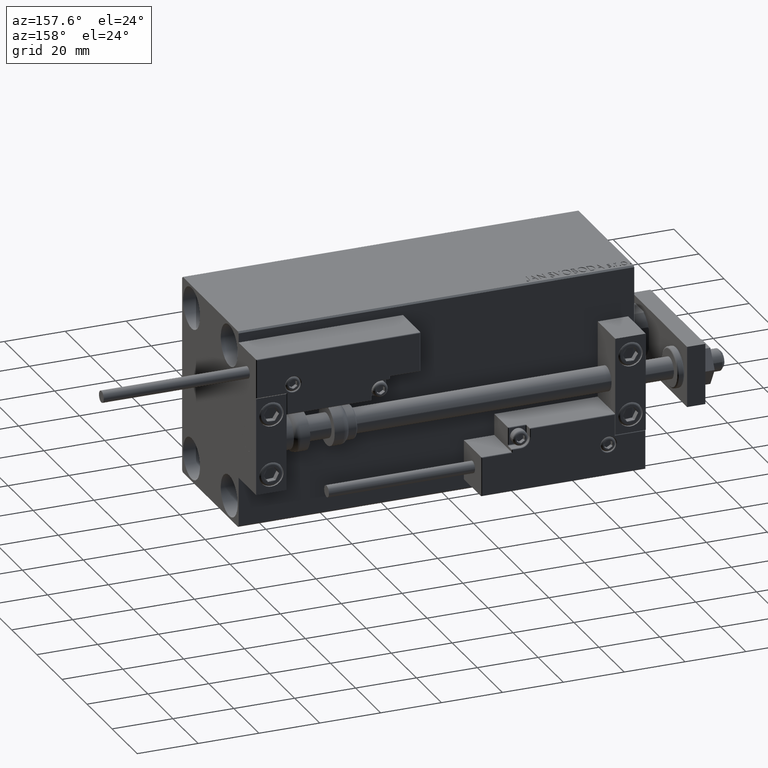
[diagram: clean part render]
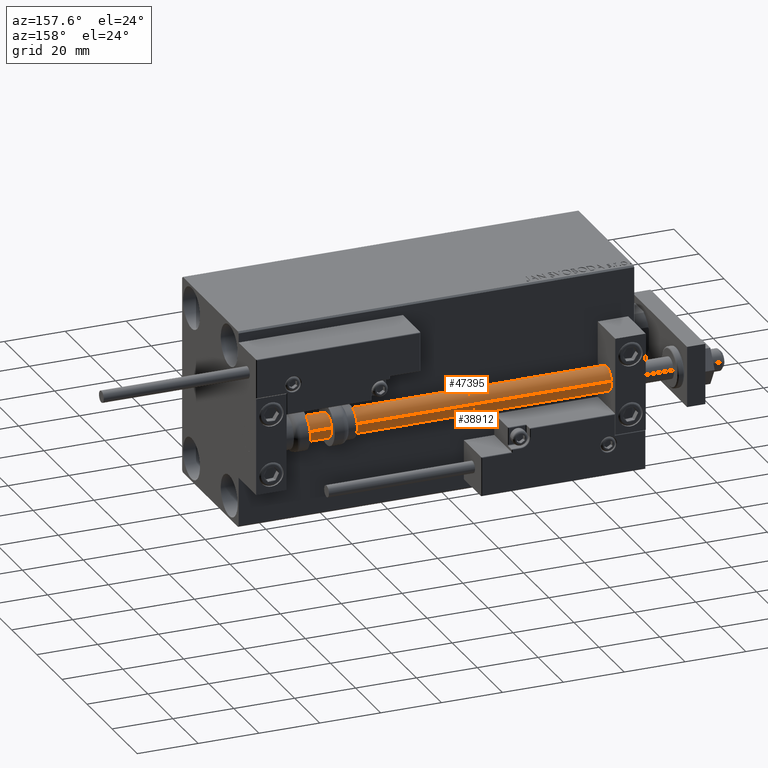
[diagram: same view with one multi-face feature highlighted, each face labeled with its STEP entity id]
A machine part, auxiliary view. The highlighted faces form ONE feature: a constant-radius fillet chain: 2 tangent blend faces with common blend radius 4 mm. The faces share edges in the B-rep.
Their STEP definitions:
[1] entity #38912 (Cylinder):
#197 = CARTESIAN_POINT ( 'NONE',  ( -4.000000000000000000, 0.000000000000000000, 2.000000000000029310 ) ) ;
#2341 = VERTEX_POINT ( 'NONE', #48620 ) ;
#4013 = DIRECTION ( 'NONE',  ( -0.000000000000000000, -0.000000000000000000, 1.000000000000000000 ) ) ;
#4878 = VECTOR ( 'NONE', #5223, 1000.000000000000000 ) ;
#4910 = DIRECTION ( 'NONE',  ( -0.000000000000000000, -0.000000000000000000, -1.000000000000000000 ) ) ;
#4916 = ORIENTED_EDGE ( 'NONE', *, *, #26073, .T. ) ;
#5223 = DIRECTION ( 'NONE',  ( -0.000000000000000000, -0.000000000000000000, -1.000000000000000000 ) ) ;
#7889 = FACE_OUTER_BOUND ( 'NONE', #49458, .T. ) ;
#8122 = AXIS2_PLACEMENT_3D ( 'NONE', #11050, #49734, #33694 ) ;
#8938 = CARTESIAN_POINT ( 'NONE',  ( -4.000000000000000000, 0.000000000000000000, 130.0000000000000000 ) ) ;
#9046 = CIRCLE ( 'NONE', #13923, 4.000000000000000000 ) ;
#11050 = CARTESIAN_POINT ( 'NONE',  ( 0.000000000000000000, 0.000000000000000000, 130.0000000000000000 ) ) ;
#11467 = VERTEX_POINT ( 'NONE', #197 ) ;
#11972 = DIRECTION ( 'NONE',  ( -1.000000000000000000, 0.000000000000000000, 0.000000000000000000 ) ) ;
#13070 = LINE ( 'NONE', #40525, #33320 ) ;
#13923 = AXIS2_PLACEMENT_3D ( 'NONE', #40082, #4013, #20243 ) ;
#14625 = ORIENTED_EDGE ( 'NONE', *, *, #25768, .F. ) ;
#20243 = DIRECTION ( 'NONE',  ( 1.000000000000000000, 0.000000000000000000, 0.000000000000000000 ) ) ;
#21268 = VERTEX_POINT ( 'NONE', #8938 ) ;
#21502 = LINE ( 'NONE', #40088, #4878 ) ;
#21935 = AXIS2_PLACEMENT_3D ( 'NONE', #42496, #26973, #11972 ) ;
#23416 = CYLINDRICAL_SURFACE ( 'NONE', #21935, 4.000000000000000000 ) ;
#25717 = EDGE_CURVE ( 'NONE', #27205, #2341, #21502, .T. ) ;
#25768 = EDGE_CURVE ( 'NONE', #21268, #27205, #49562, .T. ) ;
#26073 = EDGE_CURVE ( 'NONE', #21268, #11467, #13070, .T. ) ;
#26973 = DIRECTION ( 'NONE',  ( -0.000000000000000000, -0.000000000000000000, -1.000000000000000000 ) ) ;
#27205 = VERTEX_POINT ( 'NONE', #37457 ) ;
#29657 = ORIENTED_EDGE ( 'NONE', *, *, #25717, .F. ) ;
#33320 = VECTOR ( 'NONE', #4910, 1000.000000000000000 ) ;
#33694 = DIRECTION ( 'NONE',  ( 1.000000000000000000, 0.000000000000000000, 0.000000000000000000 ) ) ;
#37216 = ORIENTED_EDGE ( 'NONE', *, *, #42364, .T. ) ;
#37457 = CARTESIAN_POINT ( 'NONE',  ( 4.000000000000000000, 4.898587196589412829E-16, 130.0000000000000000 ) ) ;
#38912 = ADVANCED_FACE ( 'NONE', ( #7889 ), #23416, .T. ) ;
#40082 = CARTESIAN_POINT ( 'NONE',  ( 0.000000000000000000, 0.000000000000000000, 2.000000000000029310 ) ) ;
#40088 = CARTESIAN_POINT ( 'NONE',  ( 4.000000000000000000, 4.898587196589412829E-16, 130.0000000000000000 ) ) ;
#40525 = CARTESIAN_POINT ( 'NONE',  ( -4.000000000000000000, 0.000000000000000000, 130.0000000000000000 ) ) ;
#42364 = EDGE_CURVE ( 'NONE', #11467, #2341, #9046, .T. ) ;
#42496 = CARTESIAN_POINT ( 'NONE',  ( 0.000000000000000000, 0.000000000000000000, 130.0000000000000000 ) ) ;
#48620 = CARTESIAN_POINT ( 'NONE',  ( 4.000000000000000000, 4.898587196589412829E-16, 2.000000000000029310 ) ) ;
#49458 = EDGE_LOOP ( 'NONE', ( #29657, #14625, #4916, #37216 ) ) ;
#49562 = CIRCLE ( 'NONE', #8122, 4.000000000000000000 ) ;
#49734 = DIRECTION ( 'NONE',  ( 0.000000000000000000, 0.000000000000000000, 1.000000000000000000 ) ) ;
[2] entity #47395 (Cylinder):
#197 = CARTESIAN_POINT ( 'NONE',  ( -4.000000000000000000, 0.000000000000000000, 2.000000000000029310 ) ) ;
#518 = CYLINDRICAL_SURFACE ( 'NONE', #18794, 4.000000000000000000 ) ;
#591 = DIRECTION ( 'NONE',  ( 1.000000000000000000, 0.000000000000000000, 0.000000000000000000 ) ) ;
#2341 = VERTEX_POINT ( 'NONE', #48620 ) ;
#3273 = AXIS2_PLACEMENT_3D ( 'NONE', #21456, #41045, #36966 ) ;
#4878 = VECTOR ( 'NONE', #5223, 1000.000000000000000 ) ;
#4910 = DIRECTION ( 'NONE',  ( -0.000000000000000000, -0.000000000000000000, -1.000000000000000000 ) ) ;
#5223 = DIRECTION ( 'NONE',  ( -0.000000000000000000, -0.000000000000000000, -1.000000000000000000 ) ) ;
#5996 = DIRECTION ( 'NONE',  ( 0.000000000000000000, 0.000000000000000000, 1.000000000000000000 ) ) ;
#8938 = CARTESIAN_POINT ( 'NONE',  ( -4.000000000000000000, 0.000000000000000000, 130.0000000000000000 ) ) ;
#11467 = VERTEX_POINT ( 'NONE', #197 ) ;
#13070 = LINE ( 'NONE', #40525, #33320 ) ;
#14843 = CIRCLE ( 'NONE', #35162, 4.000000000000000000 ) ;
#16048 = DIRECTION ( 'NONE',  ( -0.000000000000000000, -0.000000000000000000, -1.000000000000000000 ) ) ;
#18794 = AXIS2_PLACEMENT_3D ( 'NONE', #43021, #16048, #43529 ) ;
#21268 = VERTEX_POINT ( 'NONE', #8938 ) ;
#21456 = CARTESIAN_POINT ( 'NONE',  ( 0.000000000000000000, 0.000000000000000000, 2.000000000000029310 ) ) ;
#21502 = LINE ( 'NONE', #40088, #4878 ) ;
#23245 = ORIENTED_EDGE ( 'NONE', *, *, #28915, .T. ) ;
#25717 = EDGE_CURVE ( 'NONE', #27205, #2341, #21502, .T. ) ;
#26073 = EDGE_CURVE ( 'NONE', #21268, #11467, #13070, .T. ) ;
#27205 = VERTEX_POINT ( 'NONE', #37457 ) ;
#28915 = EDGE_CURVE ( 'NONE', #2341, #11467, #42281, .T. ) ;
#30383 = CARTESIAN_POINT ( 'NONE',  ( 0.000000000000000000, 0.000000000000000000, 130.0000000000000000 ) ) ;
#32225 = ORIENTED_EDGE ( 'NONE', *, *, #25717, .T. ) ;
#33320 = VECTOR ( 'NONE', #4910, 1000.000000000000000 ) ;
#35162 = AXIS2_PLACEMENT_3D ( 'NONE', #30383, #5996, #591 ) ;
#36648 = ORIENTED_EDGE ( 'NONE', *, *, #26073, .F. ) ;
#36966 = DIRECTION ( 'NONE',  ( 1.000000000000000000, 0.000000000000000000, 0.000000000000000000 ) ) ;
#37457 = CARTESIAN_POINT ( 'NONE',  ( 4.000000000000000000, 4.898587196589412829E-16, 130.0000000000000000 ) ) ;
#37622 = ORIENTED_EDGE ( 'NONE', *, *, #50057, .F. ) ;
#40088 = CARTESIAN_POINT ( 'NONE',  ( 4.000000000000000000, 4.898587196589412829E-16, 130.0000000000000000 ) ) ;
#40525 = CARTESIAN_POINT ( 'NONE',  ( -4.000000000000000000, 0.000000000000000000, 130.0000000000000000 ) ) ;
#40911 = EDGE_LOOP ( 'NONE', ( #37622, #32225, #23245, #36648 ) ) ;
#41045 = DIRECTION ( 'NONE',  ( -0.000000000000000000, -0.000000000000000000, 1.000000000000000000 ) ) ;
#42281 = CIRCLE ( 'NONE', #3273, 4.000000000000000000 ) ;
#43021 = CARTESIAN_POINT ( 'NONE',  ( 0.000000000000000000, 0.000000000000000000, 130.0000000000000000 ) ) ;
#43276 = FACE_OUTER_BOUND ( 'NONE', #40911, .T. ) ;
#43529 = DIRECTION ( 'NONE',  ( -1.000000000000000000, 0.000000000000000000, 0.000000000000000000 ) ) ;
#47395 = ADVANCED_FACE ( 'NONE', ( #43276 ), #518, .T. ) ;
#48620 = CARTESIAN_POINT ( 'NONE',  ( 4.000000000000000000, 4.898587196589412829E-16, 2.000000000000029310 ) ) ;
#50057 = EDGE_CURVE ( 'NONE', #27205, #21268, #14843, .T. ) ;